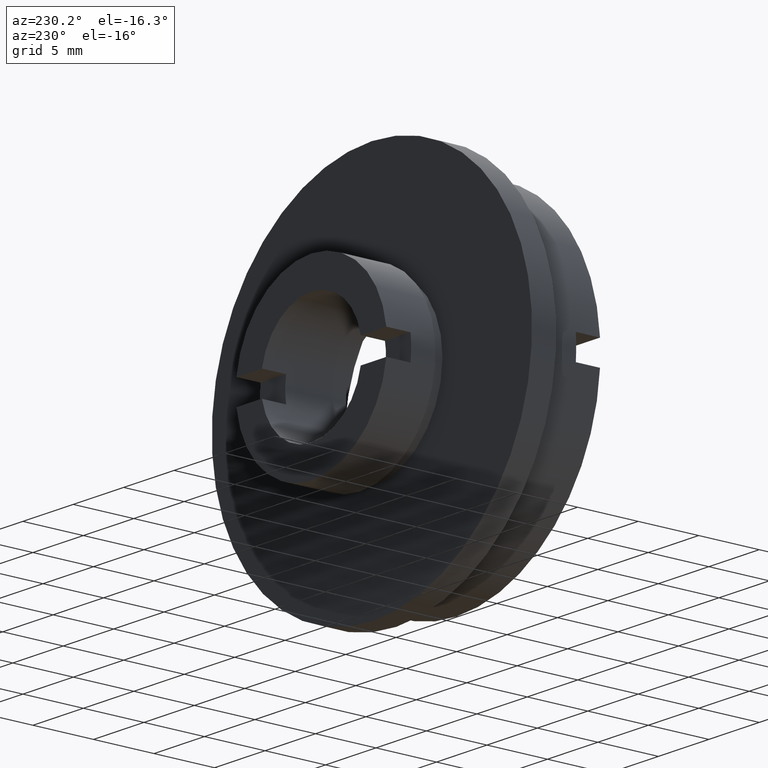
[diagram: clean part render]
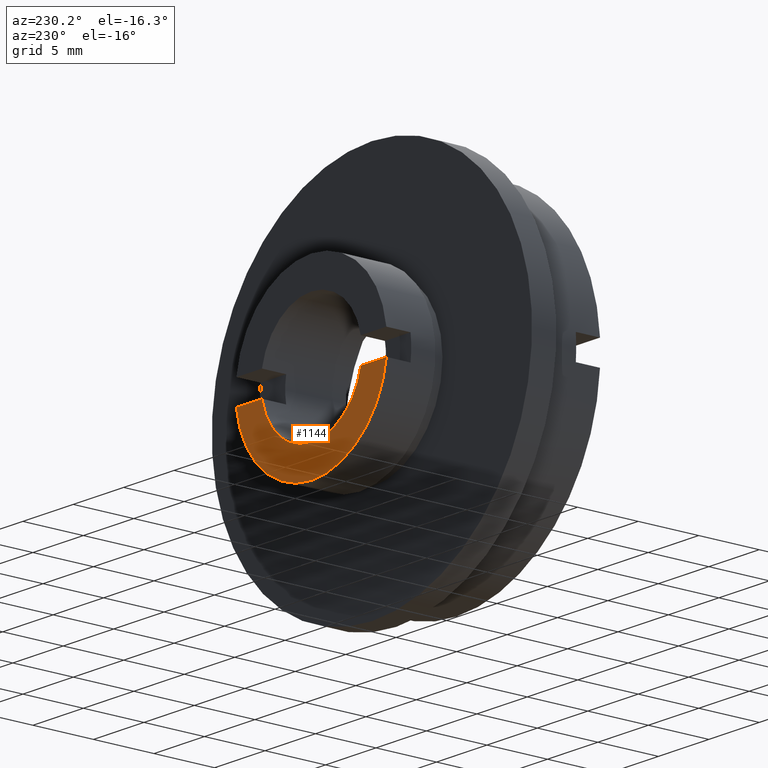
[diagram: same view with one face highlighted and labeled with its STEP entity id]
A machine part, auxiliary view. The second image highlights one B-rep face of the part: STEP entity #1144.
In plain terms, the highlighted planar face has unit normal (-0, 1, 0).
Its self-contained STEP definition (entity closure, byte-faithful):
#8 = CARTESIAN_POINT ( 'NONE',  ( 0.0000000000000000000, 12.00000000000000000, 0.0000000000000000000 ) ) ;
#28 = LINE ( 'NONE', #256, #128 ) ;
#64 = AXIS2_PLACEMENT_3D ( 'NONE', #8, #1229, #1009 ) ;
#82 = DIRECTION ( 'NONE',  ( 0.0000000000000000000, 0.0000000000000000000, 1.000000000000000000 ) ) ;
#111 = DIRECTION ( 'NONE',  ( -1.000000000000000000, 0.0000000000000000000, 0.0000000000000000000 ) ) ;
#115 = DIRECTION ( 'NONE',  ( -0.0000000000000000000, 1.000000000000000000, 0.0000000000000000000 ) ) ;
#119 = CARTESIAN_POINT ( 'NONE',  ( -7.433034373659251200, 12.00000000000000000, -0.9999999999999978900 ) ) ;
#128 = VECTOR ( 'NONE', #111, 1000.000000000000000 ) ;
#129 = VERTEX_POINT ( 'NONE', #985 ) ;
#134 = VERTEX_POINT ( 'NONE', #880 ) ;
#158 = CIRCLE ( 'NONE', #64, 7.499999999999998200 ) ;
#253 = FACE_OUTER_BOUND ( 'NONE', #485, .T. ) ;
#256 = CARTESIAN_POINT ( 'NONE',  ( -4.999999999999998200, 12.00000000000000000, -0.9999999999999978900 ) ) ;
#292 = CIRCLE ( 'NONE', #905, 4.999999999999998200 ) ;
#315 = DIRECTION ( 'NONE',  ( -0.0000000000000000000, 1.000000000000000000, -0.0000000000000000000 ) ) ;
#329 = DIRECTION ( 'NONE',  ( 0.0000000000000000000, 0.0000000000000000000, 1.000000000000000000 ) ) ;
#385 = VERTEX_POINT ( 'NONE', #501 ) ;
#433 = CIRCLE ( 'NONE', #984, 7.499999999999998200 ) ;
#436 = CARTESIAN_POINT ( 'NONE',  ( 0.0000000000000000000, 12.00000000000000000, 0.0000000000000000000 ) ) ;
#462 = VECTOR ( 'NONE', #1267, 1000.000000000000000 ) ;
#478 = CARTESIAN_POINT ( 'NONE',  ( 0.0000000000000000000, 12.00000000000000000, 0.0000000000000000000 ) ) ;
#483 = EDGE_CURVE ( 'NONE', #385, #684, #1252, .T. ) ;
#485 = EDGE_LOOP ( 'NONE', ( #1157, #925, #968, #1257, #1000, #972 ) ) ;
#501 = CARTESIAN_POINT ( 'NONE',  ( 6.123233995736764300E-016, 12.00000000000000000, -4.999999999999998200 ) ) ;
#539 = CARTESIAN_POINT ( 'NONE',  ( 0.0000000000000000000, 12.00000000000000000, 0.0000000000000000000 ) ) ;
#590 = CARTESIAN_POINT ( 'NONE',  ( -4.999999999999998200, 12.00000000000000000, 0.0000000000000000000 ) ) ;
#636 = VERTEX_POINT ( 'NONE', #732 ) ;
#684 = VERTEX_POINT ( 'NONE', #927 ) ;
#732 = CARTESIAN_POINT ( 'NONE',  ( 9.184850993605146000E-016, 12.00000000000000000, -7.499999999999998200 ) ) ;
#735 = CARTESIAN_POINT ( 'NONE',  ( -4.999999999999998200, 12.00000000000000000, -0.9999999999999978900 ) ) ;
#789 = DIRECTION ( 'NONE',  ( 0.0000000000000000000, 0.0000000000000000000, 1.000000000000000000 ) ) ;
#807 = AXIS2_PLACEMENT_3D ( 'NONE', #539, #996, #789 ) ;
#830 = AXIS2_PLACEMENT_3D ( 'NONE', #590, #115, #329 ) ;
#865 = LINE ( 'NONE', #735, #462 ) ;
#880 = CARTESIAN_POINT ( 'NONE',  ( 4.898979485566354900, 12.00000000000000000, -0.9999999999999978900 ) ) ;
#881 = EDGE_CURVE ( 'NONE', #636, #1102, #158, .T. ) ;
#905 = AXIS2_PLACEMENT_3D ( 'NONE', #436, #1246, #82 ) ;
#925 = ORIENTED_EDGE ( 'NONE', *, *, #994, .T. ) ;
#927 = CARTESIAN_POINT ( 'NONE',  ( -4.898979485566354900, 12.00000000000000000, -0.9999999999999978900 ) ) ;
#968 = ORIENTED_EDGE ( 'NONE', *, *, #881, .T. ) ;
#972 = ORIENTED_EDGE ( 'NONE', *, *, #1052, .F. ) ;
#984 = AXIS2_PLACEMENT_3D ( 'NONE', #478, #315, #1141 ) ;
#985 = CARTESIAN_POINT ( 'NONE',  ( 7.433034373659251200, 12.00000000000000000, -0.9999999999999978900 ) ) ;
#994 = EDGE_CURVE ( 'NONE', #129, #636, #433, .T. ) ;
#996 = DIRECTION ( 'NONE',  ( -0.0000000000000000000, 1.000000000000000000, -0.0000000000000000000 ) ) ;
#1000 = ORIENTED_EDGE ( 'NONE', *, *, #483, .F. ) ;
#1009 = DIRECTION ( 'NONE',  ( 0.0000000000000000000, 0.0000000000000000000, 1.000000000000000000 ) ) ;
#1052 = EDGE_CURVE ( 'NONE', #134, #385, #292, .T. ) ;
#1096 = PLANE ( 'NONE',  #830 ) ;
#1102 = VERTEX_POINT ( 'NONE', #119 ) ;
#1141 = DIRECTION ( 'NONE',  ( 0.0000000000000000000, 0.0000000000000000000, 1.000000000000000000 ) ) ;
#1144 = ADVANCED_FACE ( 'NONE', ( #253 ), #1096, .T. ) ;
#1157 = ORIENTED_EDGE ( 'NONE', *, *, #1330, .F. ) ;
#1229 = DIRECTION ( 'NONE',  ( -0.0000000000000000000, 1.000000000000000000, -0.0000000000000000000 ) ) ;
#1241 = EDGE_CURVE ( 'NONE', #684, #1102, #28, .T. ) ;
#1246 = DIRECTION ( 'NONE',  ( -0.0000000000000000000, 1.000000000000000000, -0.0000000000000000000 ) ) ;
#1252 = CIRCLE ( 'NONE', #807, 4.999999999999998200 ) ;
#1257 = ORIENTED_EDGE ( 'NONE', *, *, #1241, .F. ) ;
#1267 = DIRECTION ( 'NONE',  ( -1.000000000000000000, 0.0000000000000000000, 0.0000000000000000000 ) ) ;
#1330 = EDGE_CURVE ( 'NONE', #129, #134, #865, .T. ) ;